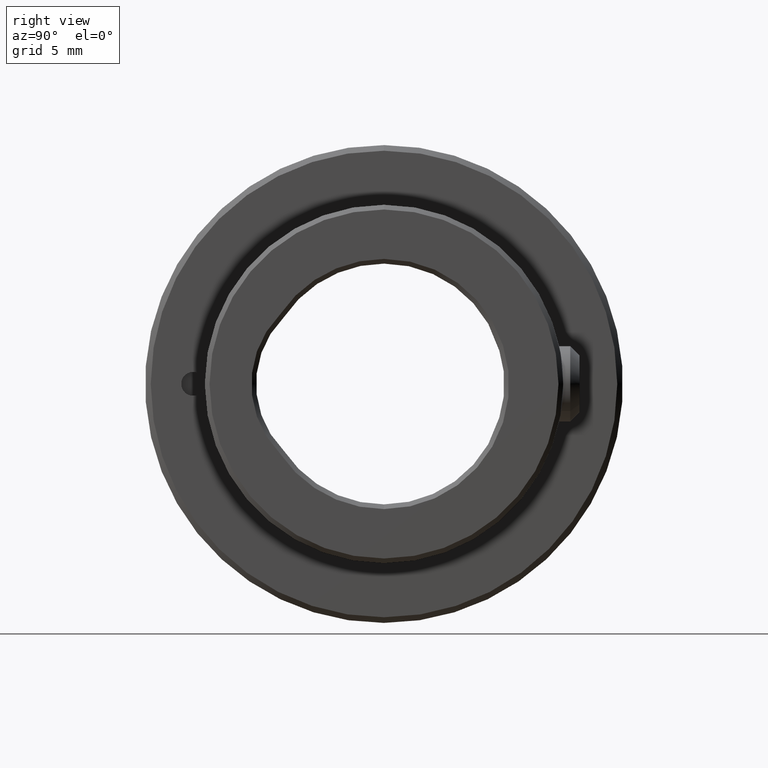
[diagram: clean part render]
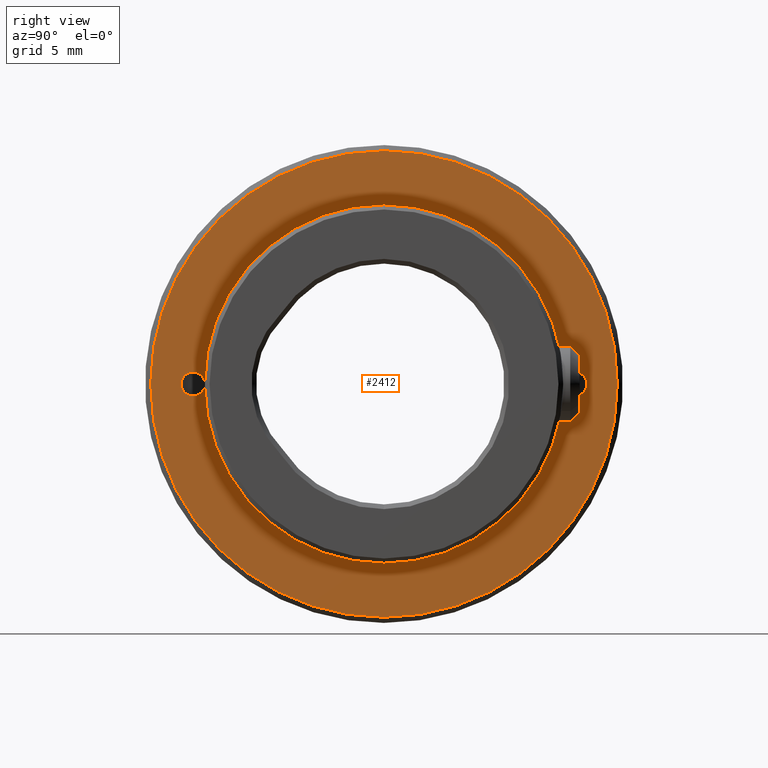
[diagram: same view with one face highlighted and labeled with its STEP entity id]
A machine part, right view. The second image highlights one B-rep face of the part: STEP entity #2412.
In plain terms, the highlighted planar face has unit normal (1, 0, 0).
Its self-contained STEP definition (entity closure, byte-faithful):
#9 = DIRECTION ( 'NONE',  ( -1.000000000000000000, -0.000000000000000000, -0.000000000000000000 ) ) ;
#34 = CARTESIAN_POINT ( 'NONE',  ( 5.100000000000000533, 9.524379310344826877, 0.1087370804987292106 ) ) ;
#130 = CARTESIAN_POINT ( 'NONE',  ( 5.099999999999999645, 0.000000000000000000, 12.40000000000000391 ) ) ;
#241 = VERTEX_POINT ( 'NONE', #2362 ) ;
#245 = FACE_OUTER_BOUND ( 'NONE', #4190, .T. ) ;
#246 = ORIENTED_EDGE ( 'NONE', *, *, #3928, .T. ) ;
#259 = EDGE_CURVE ( 'NONE', #2669, #745, #3890, .T. ) ;
#295 = EDGE_CURVE ( 'NONE', #241, #762, #2627, .T. ) ;
#306 = DIRECTION ( 'NONE',  ( 0.000000000000000000, 0.000000000000000000, -1.000000000000000000 ) ) ;
#316 = AXIS2_PLACEMENT_3D ( 'NONE', #1788, #3289, #4821 ) ;
#332 = DIRECTION ( 'NONE',  ( 1.000000000000000000, 0.000000000000000000, 0.000000000000000000 ) ) ;
#525 = DIRECTION ( 'NONE',  ( 1.000000000000000000, 0.000000000000000000, 0.000000000000000000 ) ) ;
#529 = EDGE_LOOP ( 'NONE', ( #2174, #4780, #1612, #3709, #2419, #696, #1494, #2595, #1134, #898 ) ) ;
#654 = CARTESIAN_POINT ( 'NONE',  ( 5.099999999999999645, 0.000000000000000000, 0.000000000000000000 ) ) ;
#668 = VERTEX_POINT ( 'NONE', #4849 ) ;
#696 = ORIENTED_EDGE ( 'NONE', *, *, #295, .F. ) ;
#710 = VERTEX_POINT ( 'NONE', #4248 ) ;
#745 = VERTEX_POINT ( 'NONE', #130 ) ;
#762 = VERTEX_POINT ( 'NONE', #1288 ) ;
#853 = AXIS2_PLACEMENT_3D ( 'NONE', #1861, #1105, #2218 ) ;
#898 = ORIENTED_EDGE ( 'NONE', *, *, #2298, .F. ) ;
#914 = DIRECTION ( 'NONE',  ( 0.000000000000000000, 0.000000000000000000, -1.000000000000000000 ) ) ;
#943 = DIRECTION ( 'NONE',  ( 1.000000000000000000, 0.000000000000000000, 0.000000000000000000 ) ) ;
#972 = CARTESIAN_POINT ( 'NONE',  ( 5.099999999999999645, 10.15000000000000036, 0.000000000000000000 ) ) ;
#1105 = DIRECTION ( 'NONE',  ( 1.000000000000000000, 0.000000000000000000, 0.000000000000000000 ) ) ;
#1134 = ORIENTED_EDGE ( 'NONE', *, *, #3085, .F. ) ;
#1228 = EDGE_CURVE ( 'NONE', #241, #4370, #1615, .T. ) ;
#1271 = DIRECTION ( 'NONE',  ( -1.000000000000000000, -0.000000000000000000, -0.000000000000000000 ) ) ;
#1288 = CARTESIAN_POINT ( 'NONE',  ( 5.099999999999999645, 10.15000000000000036, -0.6350000000000007860 ) ) ;
#1364 = DIRECTION ( 'NONE',  ( 1.000000000000000000, 0.000000000000000000, 0.000000000000000000 ) ) ;
#1378 = EDGE_CURVE ( 'NONE', #668, #2567, #4227, .T. ) ;
#1429 = CARTESIAN_POINT ( 'NONE',  ( 5.099999999999999645, -10.15000000000000036, 0.000000000000000000 ) ) ;
#1473 = CIRCLE ( 'NONE', #2715, 0.6350000000000007860 ) ;
#1489 = DIRECTION ( 'NONE',  ( 0.000000000000000000, 0.000000000000000000, -1.000000000000000000 ) ) ;
#1494 = ORIENTED_EDGE ( 'NONE', *, *, #1228, .T. ) ;
#1505 = VERTEX_POINT ( 'NONE', #1513 ) ;
#1513 = CARTESIAN_POINT ( 'NONE',  ( 5.099999999999999645, -10.15000000000000036, -0.6350000000000007860 ) ) ;
#1545 = CIRCLE ( 'NONE', #4066, 9.525000000000000355 ) ;
#1594 = VERTEX_POINT ( 'NONE', #34 ) ;
#1612 = ORIENTED_EDGE ( 'NONE', *, *, #2324, .T. ) ;
#1615 = CIRCLE ( 'NONE', #316, 9.525000000000000355 ) ;
#1705 = DIRECTION ( 'NONE',  ( -1.000000000000000000, -0.000000000000000000, -0.000000000000000000 ) ) ;
#1727 = DIRECTION ( 'NONE',  ( 0.000000000000000000, 0.000000000000000000, -1.000000000000000000 ) ) ;
#1750 = FACE_BOUND ( 'NONE', #529, .T. ) ;
#1771 = CIRCLE ( 'NONE', #3508, 12.40000000000000391 ) ;
#1774 = DIRECTION ( 'NONE',  ( 1.000000000000000000, 0.000000000000000000, 0.000000000000000000 ) ) ;
#1788 = CARTESIAN_POINT ( 'NONE',  ( 5.100000000000000533, 0.000000000000000000, 0.000000000000000000 ) ) ;
#1843 = EDGE_CURVE ( 'NONE', #4370, #2345, #1545, .T. ) ;
#1861 = CARTESIAN_POINT ( 'NONE',  ( 5.099999999999999645, -10.15000000000000036, 0.000000000000000000 ) ) ;
#1926 = CIRCLE ( 'NONE', #2248, 0.6350000000000007860 ) ;
#1976 = VERTEX_POINT ( 'NONE', #4431 ) ;
#1994 = DIRECTION ( 'NONE',  ( 0.000000000000000000, 0.000000000000000000, -1.000000000000000000 ) ) ;
#2070 = DIRECTION ( 'NONE',  ( 0.000000000000000000, 0.000000000000000000, -1.000000000000000000 ) ) ;
#2097 = CARTESIAN_POINT ( 'NONE',  ( 5.100000000000000533, 0.000000000000000000, -9.525000000000000355 ) ) ;
#2174 = ORIENTED_EDGE ( 'NONE', *, *, #1378, .F. ) ;
#2218 = DIRECTION ( 'NONE',  ( 0.000000000000000000, 0.000000000000000000, -1.000000000000000000 ) ) ;
#2248 = AXIS2_PLACEMENT_3D ( 'NONE', #1429, #3611, #2070 ) ;
#2298 = EDGE_CURVE ( 'NONE', #2567, #1505, #1926, .T. ) ;
#2324 = EDGE_CURVE ( 'NONE', #1976, #1594, #4397, .T. ) ;
#2345 = VERTEX_POINT ( 'NONE', #2811 ) ;
#2362 = CARTESIAN_POINT ( 'NONE',  ( 5.099999999999999645, 9.524379310344826877, -0.1087370804987292106 ) ) ;
#2388 = AXIS2_PLACEMENT_3D ( 'NONE', #3875, #525, #1994 ) ;
#2402 = CIRCLE ( 'NONE', #3908, 9.525000000000000355 ) ;
#2412 = ADVANCED_FACE ( 'NONE', ( #1750, #245 ), #4739, .T. ) ;
#2419 = ORIENTED_EDGE ( 'NONE', *, *, #3840, .F. ) ;
#2450 = DIRECTION ( 'NONE',  ( 0.000000000000000000, 0.000000000000000000, -1.000000000000000000 ) ) ;
#2567 = VERTEX_POINT ( 'NONE', #3040 ) ;
#2595 = ORIENTED_EDGE ( 'NONE', *, *, #1843, .T. ) ;
#2627 = CIRCLE ( 'NONE', #3020, 0.6350000000000007860 ) ;
#2668 = CARTESIAN_POINT ( 'NONE',  ( 5.099999999999999645, 1.536931732929928397E-15, -12.40000000000000391 ) ) ;
#2669 = VERTEX_POINT ( 'NONE', #2668 ) ;
#2715 = AXIS2_PLACEMENT_3D ( 'NONE', #4497, #3299, #4140 ) ;
#2746 = EDGE_CURVE ( 'NONE', #710, #1594, #1473, .T. ) ;
#2752 = DIRECTION ( 'NONE',  ( 0.000000000000000000, 0.000000000000000000, -1.000000000000000000 ) ) ;
#2798 = AXIS2_PLACEMENT_3D ( 'NONE', #972, #1364, #2450 ) ;
#2811 = CARTESIAN_POINT ( 'NONE',  ( 5.100000000000000533, -9.524379310344826877, -0.1087370804987292106 ) ) ;
#2952 = CARTESIAN_POINT ( 'NONE',  ( 5.100000000000000533, 0.000000000000000000, 0.000000000000000000 ) ) ;
#3020 = AXIS2_PLACEMENT_3D ( 'NONE', #3130, #4286, #914 ) ;
#3040 = CARTESIAN_POINT ( 'NONE',  ( 5.099999999999999645, -10.15000000000000036, 0.6350000000000007860 ) ) ;
#3079 = ORIENTED_EDGE ( 'NONE', *, *, #259, .T. ) ;
#3085 = EDGE_CURVE ( 'NONE', #1505, #2345, #4709, .T. ) ;
#3130 = CARTESIAN_POINT ( 'NONE',  ( 5.099999999999999645, 10.15000000000000036, 0.000000000000000000 ) ) ;
#3185 = CIRCLE ( 'NONE', #2798, 0.6350000000000007860 ) ;
#3226 = DIRECTION ( 'NONE',  ( 0.000000000000000000, 0.000000000000000000, -1.000000000000000000 ) ) ;
#3289 = DIRECTION ( 'NONE',  ( -1.000000000000000000, -0.000000000000000000, -0.000000000000000000 ) ) ;
#3299 = DIRECTION ( 'NONE',  ( 1.000000000000000000, 0.000000000000000000, 0.000000000000000000 ) ) ;
#3504 = AXIS2_PLACEMENT_3D ( 'NONE', #4402, #1774, #3226 ) ;
#3508 = AXIS2_PLACEMENT_3D ( 'NONE', #654, #332, #306 ) ;
#3578 = DIRECTION ( 'NONE',  ( 0.000000000000000000, 0.000000000000000000, -1.000000000000000000 ) ) ;
#3611 = DIRECTION ( 'NONE',  ( 1.000000000000000000, 0.000000000000000000, 0.000000000000000000 ) ) ;
#3709 = ORIENTED_EDGE ( 'NONE', *, *, #2746, .F. ) ;
#3840 = EDGE_CURVE ( 'NONE', #762, #710, #3185, .T. ) ;
#3875 = CARTESIAN_POINT ( 'NONE',  ( 5.099999999999999645, 0.000000000000000000, 0.000000000000000000 ) ) ;
#3890 = CIRCLE ( 'NONE', #2388, 12.40000000000000391 ) ;
#3898 = EDGE_CURVE ( 'NONE', #668, #1976, #2402, .T. ) ;
#3904 = AXIS2_PLACEMENT_3D ( 'NONE', #4806, #943, #3578 ) ;
#3908 = AXIS2_PLACEMENT_3D ( 'NONE', #4655, #1271, #2752 ) ;
#3928 = EDGE_CURVE ( 'NONE', #745, #2669, #1771, .T. ) ;
#4066 = AXIS2_PLACEMENT_3D ( 'NONE', #2952, #9, #1489 ) ;
#4140 = DIRECTION ( 'NONE',  ( 0.000000000000000000, 0.000000000000000000, -1.000000000000000000 ) ) ;
#4190 = EDGE_LOOP ( 'NONE', ( #246, #3079 ) ) ;
#4227 = CIRCLE ( 'NONE', #853, 0.6350000000000007860 ) ;
#4248 = CARTESIAN_POINT ( 'NONE',  ( 5.099999999999999645, 10.15000000000000036, 0.6350000000000007860 ) ) ;
#4286 = DIRECTION ( 'NONE',  ( 1.000000000000000000, 0.000000000000000000, 0.000000000000000000 ) ) ;
#4370 = VERTEX_POINT ( 'NONE', #2097 ) ;
#4397 = CIRCLE ( 'NONE', #4705, 9.525000000000000355 ) ;
#4402 = CARTESIAN_POINT ( 'NONE',  ( 5.099999999999999645, 0.000000000000000000, 0.000000000000000000 ) ) ;
#4431 = CARTESIAN_POINT ( 'NONE',  ( 5.100000000000000533, 1.166476076187854022E-15, 9.525000000000000355 ) ) ;
#4497 = CARTESIAN_POINT ( 'NONE',  ( 5.099999999999999645, 10.15000000000000036, 0.000000000000000000 ) ) ;
#4655 = CARTESIAN_POINT ( 'NONE',  ( 5.100000000000000533, 0.000000000000000000, 0.000000000000000000 ) ) ;
#4705 = AXIS2_PLACEMENT_3D ( 'NONE', #4714, #1705, #1727 ) ;
#4709 = CIRCLE ( 'NONE', #3904, 0.6350000000000007860 ) ;
#4714 = CARTESIAN_POINT ( 'NONE',  ( 5.100000000000000533, 0.000000000000000000, 0.000000000000000000 ) ) ;
#4739 = PLANE ( 'NONE',  #3504 ) ;
#4780 = ORIENTED_EDGE ( 'NONE', *, *, #3898, .T. ) ;
#4806 = CARTESIAN_POINT ( 'NONE',  ( 5.099999999999999645, -10.15000000000000036, 0.000000000000000000 ) ) ;
#4821 = DIRECTION ( 'NONE',  ( 0.000000000000000000, 8.881784197001252323E-16, -1.000000000000000000 ) ) ;
#4849 = CARTESIAN_POINT ( 'NONE',  ( 5.099999999999999645, -9.524379310344826877, 0.1087370804987292106 ) ) ;